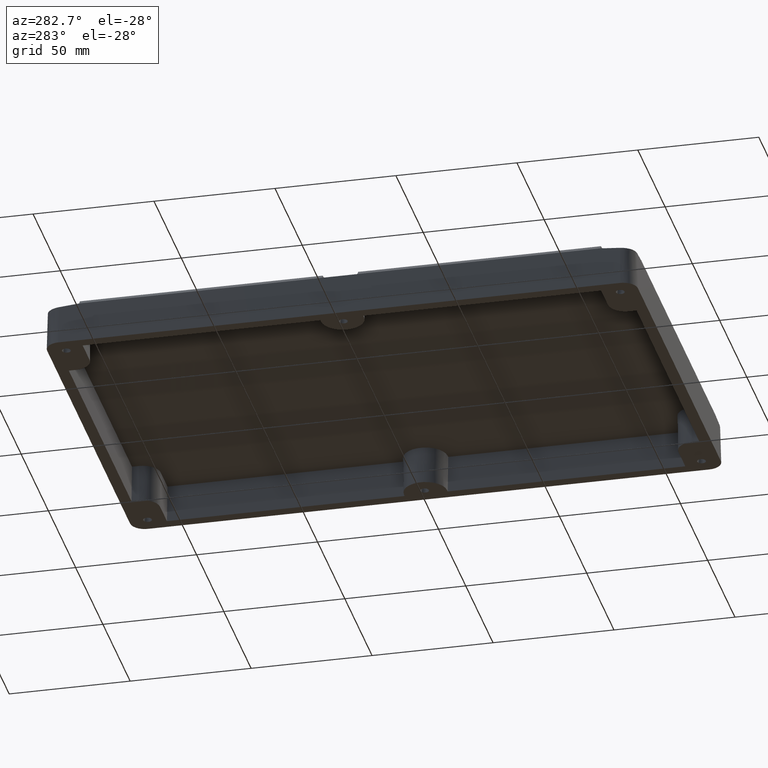
[diagram: clean part render]
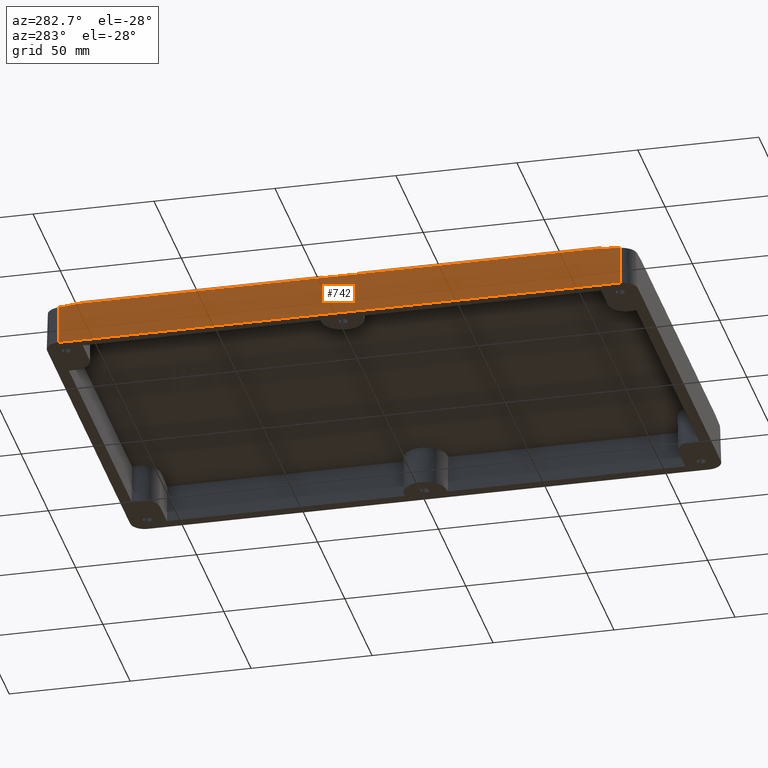
[diagram: same view with one face highlighted and labeled with its STEP entity id]
A machine part, auxiliary view. The second image highlights one B-rep face of the part: STEP entity #742.
In plain terms, the highlighted planar face has unit normal (-0.9996, 0, 0.0269).
Its self-contained STEP definition (entity closure, byte-faithful):
#86 = CARTESIAN_POINT ( 'NONE',  ( -81.96005476934111300, -115.9693269471884300, 5.205415652649030300 ) ) ;
#198 = EDGE_CURVE ( 'NONE', #1057, #1414, #5565, .T. ) ;
#270 = VERTEX_POINT ( 'NONE', #2221 ) ;
#393 = VECTOR ( 'NONE', #934, 1000.000000000000000 ) ;
#421 = CARTESIAN_POINT ( 'NONE',  ( -82.16015124168760100, 6.966253360904783400, -2.237391110314635300 ) ) ;
#441 = CARTESIAN_POINT ( 'NONE',  ( -82.09999999999996600, -122.1000000000000100, 0.0000000000000000000 ) ) ;
#481 = CARTESIAN_POINT ( 'NONE',  ( -81.81986720003401100, 116.1719079438221600, 10.41984535591477500 ) ) ;
#522 = EDGE_CURVE ( 'NONE', #270, #5209, #1562, .T. ) ;
#548 = ORIENTED_EDGE ( 'NONE', *, *, #1953, .F. ) ;
#571 = LINE ( 'NONE', #5401, #5299 ) ;
#596 = CARTESIAN_POINT ( 'NONE',  ( -82.09999999999996600, -116.1022757438245500, 0.0000000000000000000 ) ) ;
#742 = ADVANCED_FACE ( 'NONE', ( #1343 ), #2127, .T. ) ;
#808 = VERTEX_POINT ( 'NONE', #1723 ) ;
#887 = DIRECTION ( 'NONE',  ( -0.02687063985305606800, -0.01766707301662795100, -0.9994827878682615000 ) ) ;
#934 = DIRECTION ( 'NONE',  ( 0.0000000000000000000, 1.000000000000000000, 0.0000000000000000000 ) ) ;
#955 = VERTEX_POINT ( 'NONE', #3652 ) ;
#964 = CARTESIAN_POINT ( 'NONE',  ( -81.66831125529682800, 116.0203519990849900, 16.05713419578921000 ) ) ;
#988 = CARTESIAN_POINT ( 'NONE',  ( -82.09999999999996600, 116.1022757438246200, 0.0000000000000000000 ) ) ;
#1000 = CARTESIAN_POINT ( 'NONE',  ( -81.68008234637878200, -123.4707230514943000, 15.61929561080631300 ) ) ;
#1028 = CARTESIAN_POINT ( 'NONE',  ( -81.64292753762649100, -107.7123076803200000, 17.00130928958513000 ) ) ;
#1030 = VERTEX_POINT ( 'NONE', #1028 ) ;
#1052 = CARTESIAN_POINT ( 'NONE',  ( -82.09999999999996600, -116.1022757438245500, 0.0000000000000000000 ) ) ;
#1057 = VERTEX_POINT ( 'NONE', #1052 ) ;
#1072 = CARTESIAN_POINT ( 'NONE',  ( -81.64292970635666800, 7.300000000000000700, 17.00122862129797600 ) ) ;
#1080 = CARTESIAN_POINT ( 'NONE',  ( -81.67411913712317100, -116.0261598809113700, 15.84110368995982800 ) ) ;
#1094 = VECTOR ( 'NONE', #2649, 1000.000000000000000 ) ;
#1171 = LINE ( 'NONE', #3842, #6041 ) ;
#1213 = CARTESIAN_POINT ( 'NONE',  ( -82.09999999999996600, -122.1000000000000100, 0.0000000000000000000 ) ) ;
#1277 = CARTESIAN_POINT ( 'NONE',  ( -81.10874407346221900, -118.8642766701554900, 36.87084648392568200 ) ) ;
#1294 = EDGE_CURVE ( 'NONE', #808, #2076, #4543, .T. ) ;
#1307 = EDGE_CURVE ( 'NONE', #955, #2997, #2182, .T. ) ;
#1310 = CARTESIAN_POINT ( 'NONE',  ( -82.04637620902620700, -7.039668778032387700, 1.994595454057450600 ) ) ;
#1343 = FACE_OUTER_BOUND ( 'NONE', #4453, .T. ) ;
#1414 = VERTEX_POINT ( 'NONE', #4314 ) ;
#1468 = DIRECTION ( 'NONE',  ( 0.002348618170579245400, 0.9961740893152020200, 0.08735941717821153800 ) ) ;
#1557 = CARTESIAN_POINT ( 'NONE',  ( -81.66250337347047200, -116.0145441172586500, 16.27316470161859700 ) ) ;
#1562 = LINE ( 'NONE', #1310, #3903 ) ;
#1676 = DIRECTION ( 'NONE',  ( 0.02687483434051928700, 0.0000000000000000000, 0.9996388064091797900 ) ) ;
#1707 = EDGE_CURVE ( 'NONE', #2997, #4181, #2636, .T. ) ;
#1723 = CARTESIAN_POINT ( 'NONE',  ( -81.64292753762649100, 7.300001399412753500, 17.00130928958513000 ) ) ;
#1953 = EDGE_CURVE ( 'NONE', #1057, #4181, #4304, .T. ) ;
#2044 = DIRECTION ( 'NONE',  ( 0.0000000000000000000, -1.000000000000000000, 0.0000000000000000000 ) ) ;
#2076 = VERTEX_POINT ( 'NONE', #3780 ) ;
#2117 = VERTEX_POINT ( 'NONE', #1072 ) ;
#2127 = PLANE ( 'NONE',  #5929 ) ;
#2134 = VECTOR ( 'NONE', #2044, 1000.000000000000000 ) ;
#2182 = LINE ( 'NONE', #1277, #1094 ) ;
#2184 = DIRECTION ( 'NONE',  ( 0.0000000000000000000, 1.000000000000000000, 0.0000000000000000000 ) ) ;
#2221 = CARTESIAN_POINT ( 'NONE',  ( -81.64292753762649100, -7.300001399412739300, 17.00130928958513000 ) ) ;
#2402 = LINE ( 'NONE', #1000, #3509 ) ;
#2618 = ORIENTED_EDGE ( 'NONE', *, *, #2787, .F. ) ;
#2636 = B_SPLINE_CURVE_WITH_KNOTS ( 'NONE', 3,
 ( #6162, #964, #4715, #3298, #481, #3786, #988 ),
 .UNSPECIFIED., .F., .F.,
 ( 4, 3, 4 ),
 ( -0.009876189732526392500, -0.009227629957421852900, 0.006399336135513517300 ),
 .UNSPECIFIED. ) ;
#2649 = DIRECTION ( 'NONE',  ( -0.002348618170579245400, 0.9961740893152020200, -0.08735941717821153800 ) ) ;
#2716 = CARTESIAN_POINT ( 'NONE',  ( -82.10668754128344900, -108.0172234505288600, -0.2487503997875769600 ) ) ;
#2787 = EDGE_CURVE ( 'NONE', #1030, #5962, #3832, .T. ) ;
#2997 = VERTEX_POINT ( 'NONE', #3980 ) ;
#3127 = ORIENTED_EDGE ( 'NONE', *, *, #198, .T. ) ;
#3165 = ORIENTED_EDGE ( 'NONE', *, *, #3341, .T. ) ;
#3248 = EDGE_CURVE ( 'NONE', #2117, #5209, #5900, .T. ) ;
#3298 = CARTESIAN_POINT ( 'NONE',  ( -81.67992701894954200, 116.0319677627376900, 15.62507318413043900 ) ) ;
#3341 = EDGE_CURVE ( 'NONE', #2076, #955, #571, .T. ) ;
#3380 = CARTESIAN_POINT ( 'NONE',  ( -81.81986720003399700, -116.1719079438221900, 10.41984535591477900 ) ) ;
#3509 = VECTOR ( 'NONE', #1468, 1000.000000000000000 ) ;
#3652 = CARTESIAN_POINT ( 'NONE',  ( -81.64292970636505200, 107.7123091062355200, 17.00122862098644200 ) ) ;
#3689 = VECTOR ( 'NONE', #887, 1000.000000000000100 ) ;
#3780 = CARTESIAN_POINT ( 'NONE',  ( -81.64292753762649100, 107.7123076803200000, 17.00130928958513000 ) ) ;
#3786 = CARTESIAN_POINT ( 'NONE',  ( -81.96005476934111300, 115.9693269471883900, 5.205415652649025800 ) ) ;
#3832 = LINE ( 'NONE', #2716, #3689 ) ;
#3842 = CARTESIAN_POINT ( 'NONE',  ( -81.64292753762649100, -122.1000000000000100, 17.00130928958513000 ) ) ;
#3889 = CARTESIAN_POINT ( 'NONE',  ( -81.67992701894952700, -116.0319677627377200, 15.62507318413044300 ) ) ;
#3903 = VECTOR ( 'NONE', #4593, 1000.000000000000200 ) ;
#3975 = ORIENTED_EDGE ( 'NONE', *, *, #1707, .T. ) ;
#3980 = CARTESIAN_POINT ( 'NONE',  ( -81.66250337347047200, 116.0145441172586400, 16.27316470161859000 ) ) ;
#4021 = ORIENTED_EDGE ( 'NONE', *, *, #1307, .T. ) ;
#4052 = ORIENTED_EDGE ( 'NONE', *, *, #4401, .F. ) ;
#4078 = EDGE_CURVE ( 'NONE', #1414, #5962, #2402, .T. ) ;
#4181 = VERTEX_POINT ( 'NONE', #4379 ) ;
#4198 = DIRECTION ( 'NONE',  ( -0.02687079425967038900, -0.01733887060260479500, -0.9994885311908688900 ) ) ;
#4261 = CARTESIAN_POINT ( 'NONE',  ( -81.64292970636505200, -107.7123091062355200, 17.00122862098644200 ) ) ;
#4304 = LINE ( 'NONE', #441, #393 ) ;
#4313 = DIRECTION ( 'NONE',  ( 0.0000000000000000000, 1.000000000000000000, 0.0000000000000000000 ) ) ;
#4314 = CARTESIAN_POINT ( 'NONE',  ( -81.66250337347047200, -116.0145441172586500, 16.27316470161859700 ) ) ;
#4366 = CARTESIAN_POINT ( 'NONE',  ( -81.66831125529681400, -116.0203519990850200, 16.05713419578921000 ) ) ;
#4379 = CARTESIAN_POINT ( 'NONE',  ( -82.09999999999996600, 116.1022757438246200, 0.0000000000000000000 ) ) ;
#4380 = CARTESIAN_POINT ( 'NONE',  ( -81.64292970635666800, -122.1000000000000100, 17.00122862129797600 ) ) ;
#4399 = ORIENTED_EDGE ( 'NONE', *, *, #3248, .F. ) ;
#4401 = EDGE_CURVE ( 'NONE', #808, #2117, #4837, .T. ) ;
#4414 = ORIENTED_EDGE ( 'NONE', *, *, #4078, .T. ) ;
#4453 = EDGE_LOOP ( 'NONE', ( #4021, #3975, #548, #3127, #4414, #2618, #5075, #6054, #4399, #4052, #5823, #3165 ) ) ;
#4495 = DIRECTION ( 'NONE',  ( -0.9996388064091797900, 0.0000000000000000000, 0.02687483434051928700 ) ) ;
#4543 = LINE ( 'NONE', #5483, #5808 ) ;
#4564 = EDGE_CURVE ( 'NONE', #1030, #270, #1171, .T. ) ;
#4593 = DIRECTION ( 'NONE',  ( -0.02687079425967038900, 0.01733887060260479500, -0.9994885311908688900 ) ) ;
#4653 = CARTESIAN_POINT ( 'NONE',  ( -81.64292970635666800, -7.300000000000000700, 17.00122862129797600 ) ) ;
#4715 = CARTESIAN_POINT ( 'NONE',  ( -81.67411913712317100, 116.0261598809113400, 15.84110368995982500 ) ) ;
#4837 = LINE ( 'NONE', #421, #5663 ) ;
#4910 = DIRECTION ( 'NONE',  ( -0.02687063985305606800, 0.01766707301662795100, -0.9994827878682615000 ) ) ;
#5075 = ORIENTED_EDGE ( 'NONE', *, *, #4564, .T. ) ;
#5209 = VERTEX_POINT ( 'NONE', #4653 ) ;
#5299 = VECTOR ( 'NONE', #4910, 1000.000000000000100 ) ;
#5401 = CARTESIAN_POINT ( 'NONE',  ( -81.99075956043805000, 107.9410024110051600, 4.063317422970921900 ) ) ;
#5483 = CARTESIAN_POINT ( 'NONE',  ( -81.64292753762649100, -122.1000000000000100, 17.00130928958513000 ) ) ;
#5565 = B_SPLINE_CURVE_WITH_KNOTS ( 'NONE', 3,
 ( #596, #86, #3380, #3889, #1080, #4366, #1557 ),
 .UNSPECIFIED., .F., .F.,
 ( 4, 3, 4 ),
 ( 0.0001611296678150370000, 0.01578809576075041300, 0.01643665553585495900 ),
 .UNSPECIFIED. ) ;
#5663 = VECTOR ( 'NONE', #4198, 1000.000000000000200 ) ;
#5808 = VECTOR ( 'NONE', #2184, 1000.000000000000000 ) ;
#5823 = ORIENTED_EDGE ( 'NONE', *, *, #1294, .T. ) ;
#5900 = LINE ( 'NONE', #4380, #2134 ) ;
#5929 = AXIS2_PLACEMENT_3D ( 'NONE', #1213, #4495, #1676 ) ;
#5962 = VERTEX_POINT ( 'NONE', #4261 ) ;
#6041 = VECTOR ( 'NONE', #4313, 1000.000000000000000 ) ;
#6054 = ORIENTED_EDGE ( 'NONE', *, *, #522, .T. ) ;
#6162 = CARTESIAN_POINT ( 'NONE',  ( -81.66250337347047200, 116.0145441172586400, 16.27316470161859000 ) ) ;